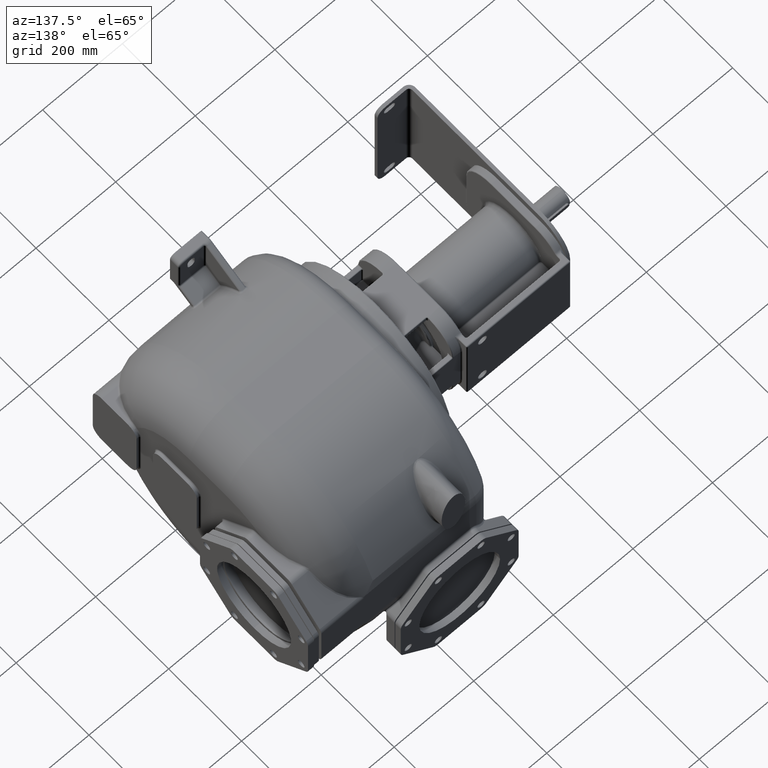
[diagram: clean part render]
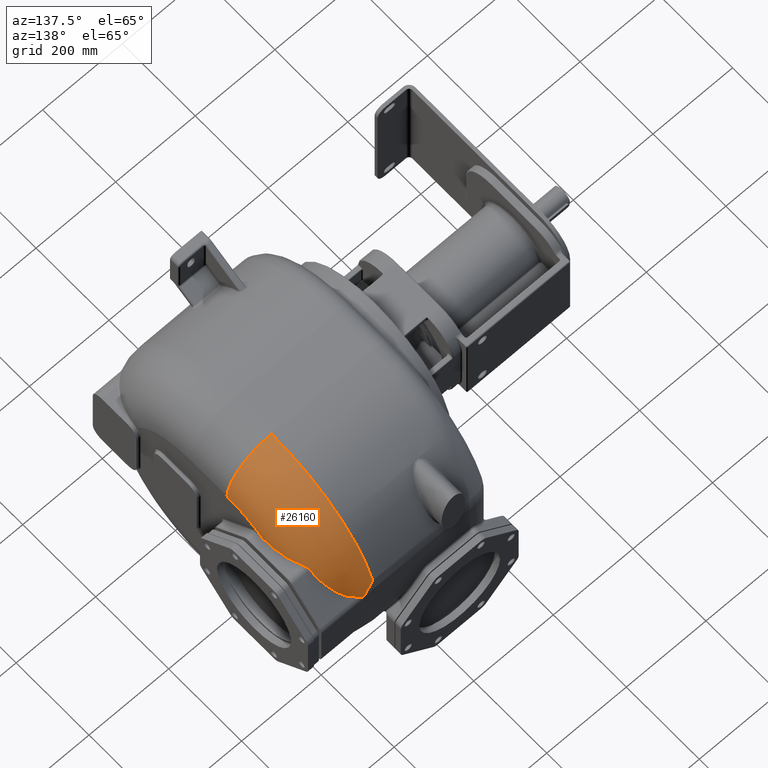
[diagram: same view with one face highlighted and labeled with its STEP entity id]
A machine part, auxiliary view. The second image highlights one B-rep face of the part: STEP entity #26160.
In plain terms, the highlighted toroidal blend (fillet) surface has major radius 179 mm and minor (blend) radius 112 mm.
Its self-contained STEP definition (entity closure, byte-faithful):
#5194=CARTESIAN_POINT('',(1.36E2,3.94E2,1.43E2));
#5195=DIRECTION('',(0.E0,-1.E0,0.E0));
#5196=DIRECTION('',(1.E0,0.E0,0.E0));
#5197=AXIS2_PLACEMENT_3D('',#5194,#5195,#5196);
#5236=CARTESIAN_POINT('',(2.48E2,3.94E2,-3.6E1));
#5237=DIRECTION('',(1.E0,0.E0,0.E0));
#5238=DIRECTION('',(0.E0,5.456873886561E-1,8.379888268120E-1));
#5239=AXIS2_PLACEMENT_3D('',#5236,#5237,#5238);
#5565=CARTESIAN_POINT('',(1.36E2,6.718391959799E2,5.052387634198E1));
#5566=CARTESIAN_POINT('',(1.366095752794E2,6.720213209790E2,4.993904355818E1));
#5567=CARTESIAN_POINT('',(1.378285896193E2,6.723723389908E2,4.876540576696E1));
#5568=CARTESIAN_POINT('',(1.396564296614E2,6.728589652222E2,4.699370218160E1));
#5569=CARTESIAN_POINT('',(1.414830226464E2,6.733054446863E2,4.521173684816E1));
#5570=CARTESIAN_POINT('',(1.433077513324E2,6.737115443172E2,4.342054669598E1));
#5571=CARTESIAN_POINT('',(1.451299345616E2,6.740770541203E2,4.162124411963E1));
#5572=CARTESIAN_POINT('',(1.469489379877E2,6.744018126540E2,3.981490063119E1));
#5573=CARTESIAN_POINT('',(1.487641441441E2,6.746856964704E2,3.800257834718E1));
#5574=CARTESIAN_POINT('',(1.505749254772E2,6.749286158565E2,3.618535511210E1));
#5575=CARTESIAN_POINT('',(1.523806496403E2,6.751305163500E2,3.436431893960E1));
#5576=CARTESIAN_POINT('',(1.541807008459E2,6.752913837220E2,3.254054522322E1));
#5577=CARTESIAN_POINT('',(1.559744695636E2,6.754112332183E2,3.071510387508E1));
#5578=CARTESIAN_POINT('',(1.577613476459E2,6.754901398516E2,2.888907617781E1));
#5579=CARTESIAN_POINT('',(1.595407476130E2,6.755281255369E2,2.706348337332E1));
#5580=CARTESIAN_POINT('',(1.607215962272E2,6.755264273906E2,2.584753595901E1));
#5581=CARTESIAN_POINT('',(1.613106156917E2,6.755187613096E2,2.523992685094E1));
#5583=CARTESIAN_POINT('',(1.613106156917E2,6.755187613096E2,2.523992685094E1));
#5584=CARTESIAN_POINT('',(1.615282849909E2,6.755159201790E2,2.501544371408E1));
#5585=CARTESIAN_POINT('',(1.619626435365E2,6.755096172252E2,2.456096269307E1));
#5586=CARTESIAN_POINT('',(1.626063624900E2,6.755011354481E2,2.385788048716E1));
#5587=CARTESIAN_POINT('',(1.632443720441E2,6.754921996188E2,2.313578667539E1));
#5588=CARTESIAN_POINT('',(1.636653350095E2,6.754863494762E2,2.264138464070E1));
#5589=CARTESIAN_POINT('',(1.638747586404E2,6.754833351880E2,2.239091367892E1));
#5591=CARTESIAN_POINT('',(1.638747586404E2,6.754833351880E2,2.239091367892E1));
#5592=CARTESIAN_POINT('',(1.638925941835E2,6.754642754049E2,2.246022672105E1));
#5593=CARTESIAN_POINT('',(1.639315096643E2,6.754249128449E2,2.260000634012E1));
#5594=CARTESIAN_POINT('',(1.639994272159E2,6.753625749068E2,2.281324229403E1));
#5595=CARTESIAN_POINT('',(1.640777131575E2,6.752964629059E2,2.303012570554E1));
#5596=CARTESIAN_POINT('',(1.641667924829E2,6.752264634192E2,2.325076715879E1));
#5597=CARTESIAN_POINT('',(1.642671757279E2,6.751523785855E2,2.347519603529E1));
#5598=CARTESIAN_POINT('',(1.643793180776E2,6.750740446437E2,2.370341339668E1));
#5599=CARTESIAN_POINT('',(1.645035817646E2,6.749913418168E2,2.393527525174E1));
#5600=CARTESIAN_POINT('',(1.646403859199E2,6.749040753187E2,2.417089888323E1));
#5601=CARTESIAN_POINT('',(1.647914695477E2,6.748112389723E2,2.441246683234E1));
#5602=CARTESIAN_POINT('',(1.649593306151E2,6.747116868460E2,2.466172614320E1));
#5603=CARTESIAN_POINT('',(1.651466684408E2,6.746042218936E2,2.492025074276E1));
#5604=CARTESIAN_POINT('',(1.653561365635E2,6.744877062041E2,2.518922260195E1));
#5605=CARTESIAN_POINT('',(1.655905890460E2,6.743608688908E2,2.546996977605E1));
#5606=CARTESIAN_POINT('',(1.658513325306E2,6.742231630611E2,2.576226642683E1));
#5607=CARTESIAN_POINT('',(1.661375673941E2,6.740748664321E2,2.606472570068E1));
#5608=CARTESIAN_POINT('',(1.664501808560E2,6.739157804325E2,2.637589878553E1));
#5609=CARTESIAN_POINT('',(1.667928546048E2,6.737442135699E2,2.669721234130E1));
#5610=CARTESIAN_POINT('',(1.671690134773E2,6.735585555757E2,2.702966358378E1));
#5611=CARTESIAN_POINT('',(1.675822717465E2,6.733568993543E2,2.737488528290E1));
#5612=CARTESIAN_POINT('',(1.680363736065E2,6.731372728982E2,2.773410079361E1));
#5613=CARTESIAN_POINT('',(1.685356634720E2,6.728976150057E2,2.810751683662E1));
#5614=CARTESIAN_POINT('',(1.690841285949E2,6.726358043547E2,2.849537598087E1));
#5615=CARTESIAN_POINT('',(1.696851863686E2,6.723496215409E2,2.889837135310E1));
#5616=CARTESIAN_POINT('',(1.703430648790E2,6.720365728682E2,2.931639601625E1));
#5617=CARTESIAN_POINT('',(1.710603406248E2,6.716948626283E2,2.974772528561E1));
#5618=CARTESIAN_POINT('',(1.718371565384E2,6.713233982689E2,3.019040203344E1));
#5619=CARTESIAN_POINT('',(1.726741498601E2,6.709208609538E2,3.064213670629E1));
#5620=CARTESIAN_POINT('',(1.732724086344E2,6.706309491828E2,3.094763589216E1));
#5621=CARTESIAN_POINT('',(1.735816067551E2,6.704803469810E2,3.110119043671E1));
#5623=CARTESIAN_POINT('',(1.735816067551E2,6.704803469810E2,3.110119043671E1));
#5624=CARTESIAN_POINT('',(1.739991651561E2,6.702769633329E2,3.130855998376E1));
#5625=CARTESIAN_POINT('',(1.748344401012E2,6.698615867163E2,3.173210263408E1));
#5626=CARTESIAN_POINT('',(1.760872615986E2,6.692122715134E2,3.239418557436E1));
#5627=CARTESIAN_POINT('',(1.773391540933E2,6.685364795372E2,3.308324373031E1));
#5628=CARTESIAN_POINT('',(1.785893264617E2,6.678339676624E2,3.379949544455E1));
#5629=CARTESIAN_POINT('',(1.798369437296E2,6.671045397943E2,3.454312213708E1));
#5630=CARTESIAN_POINT('',(1.810811708043E2,6.663480194452E2,3.531429433374E1));
#5631=CARTESIAN_POINT('',(1.823210893007E2,6.655643104821E2,3.611311342046E1));
#5632=CARTESIAN_POINT('',(1.835565157288E2,6.647528568632E2,3.694016218360E1));
#5633=CARTESIAN_POINT('',(1.847872659285E2,6.639130509495E2,3.779609874247E1));
#5634=CARTESIAN_POINT('',(1.860132327309E2,6.630442035748E2,3.868163048376E1));
#5635=CARTESIAN_POINT('',(1.872346095840E2,6.621453499696E2,3.959773147614E1));
#5636=CARTESIAN_POINT('',(1.884514743639E2,6.612155216582E2,4.054537722466E1));
#5637=CARTESIAN_POINT('',(1.896638416125E2,6.602537117617E2,4.152557764707E1));
#5638=CARTESIAN_POINT('',(1.908711628677E2,6.592592964332E2,4.253894928029E1));
#5639=CARTESIAN_POINT('',(1.920727965001E2,6.582317120894E2,4.358604459426E1));
#5640=CARTESIAN_POINT('',(1.932680774872E2,6.571703970368E2,4.466741431742E1));
#5641=CARTESIAN_POINT('',(1.944561745076E2,6.560749320205E2,4.578345948674E1));
#5642=CARTESIAN_POINT('',(1.956363259604E2,6.549448247609E2,4.693468548282E1));
#5643=CARTESIAN_POINT('',(1.968075958191E2,6.537797369375E2,4.812144591450E1));
#5644=CARTESIAN_POINT('',(1.979678400464E2,6.525806323247E2,4.934275433908E1));
#5645=CARTESIAN_POINT('',(1.991151416661E2,6.513484650783E2,5.059762544889E1));
#5646=CARTESIAN_POINT('',(2.002476748772E2,6.500842980406E2,5.188495383869E1));
#5647=CARTESIAN_POINT('',(2.013638959720E2,6.487890836895E2,5.320373800958E1));
#5648=CARTESIAN_POINT('',(2.024622863505E2,6.474639351730E2,5.455280591163E1));
#5649=CARTESIAN_POINT('',(2.035416937823E2,6.461097270654E2,5.593122024834E1));
#5650=CARTESIAN_POINT('',(2.046020793063E2,6.447259647149E2,5.733950727813E1));
#5651=CARTESIAN_POINT('',(2.056432556589E2,6.433122870771E2,5.877804124617E1));
#5652=CARTESIAN_POINT('',(2.066649749222E2,6.418683950148E2,6.024711485296E1));
#5653=CARTESIAN_POINT('',(2.076668650016E2,6.403941586978E2,6.174682976707E1));
#5654=CARTESIAN_POINT('',(2.086485790755E2,6.388894213165E2,6.327730006121E1));
#5655=CARTESIAN_POINT('',(2.096097431800E2,6.373540858849E2,6.483854951885E1));
#5656=CARTESIAN_POINT('',(2.105499462527E2,6.357881045892E2,6.643058211104E1));
#5657=CARTESIAN_POINT('',(2.114687846221E2,6.341913817731E2,6.805351584358E1));
#5658=CARTESIAN_POINT('',(2.123658397140E2,6.325638864671E2,6.970736540571E1));
#5659=CARTESIAN_POINT('',(2.132406786333E2,6.309056526390E2,7.139205992851E1));
#5660=CARTESIAN_POINT('',(2.140928948108E2,6.292167098895E2,7.310751248821E1));
#5661=CARTESIAN_POINT('',(2.149220938070E2,6.274971258266E2,7.485355964848E1));
#5662=CARTESIAN_POINT('',(2.157278643938E2,6.257469619597E2,7.663012734888E1));
#5663=CARTESIAN_POINT('',(2.165098122792E2,6.239662680762E2,7.843715851862E1));
#5664=CARTESIAN_POINT('',(2.172675490193E2,6.221551458921E2,8.027450771264E1));
#5665=CARTESIAN_POINT('',(2.180006924815E2,6.203137438683E2,8.214196149563E1));
#5666=CARTESIAN_POINT('',(2.187089108778E2,6.184421732582E2,8.403929671457E1));
#5667=CARTESIAN_POINT('',(2.193917934429E2,6.165407360413E2,8.596615157036E1));
#5668=CARTESIAN_POINT('',(2.200488886758E2,6.146098498069E2,8.792211337789E1));
#5669=CARTESIAN_POINT('',(2.206798101789E2,6.126498870526E2,8.990676566440E1));
#5670=CARTESIAN_POINT('',(2.212841582290E2,6.106613827519E2,9.191950030251E1));
#5671=CARTESIAN_POINT('',(2.218615654608E2,6.086449227205E2,9.395962720789E1));
#5672=CARTESIAN_POINT('',(2.224117281911E2,6.066010411496E2,9.602646246463E1));
#5673=CARTESIAN_POINT('',(2.229342307640E2,6.045305657451E2,9.811917280439E1));
#5674=CARTESIAN_POINT('',(2.234286887325E2,6.024343856119E2,1.002368502607E2));
#5675=CARTESIAN_POINT('',(2.238947685286E2,6.003134111605E2,1.023785287647E2));
#5676=CARTESIAN_POINT('',(2.243322161446E2,5.981683725410E2,1.045433935014E2));
#5677=CARTESIAN_POINT('',(2.246045364838E2,5.967232265814E2,1.060010851231E2));
#5678=CARTESIAN_POINT('',(2.247358971682E2,5.959966895569E2,1.067337059876E2));
#5680=CARTESIAN_POINT('',(2.247358971682E2,5.959966895569E2,1.067337059876E2));
#5681=CARTESIAN_POINT('',(2.247559903761E2,5.958855535043E2,1.068457684127E2));
#5682=CARTESIAN_POINT('',(2.247988818928E2,5.956600017034E2,1.070678742757E2));
#5683=CARTESIAN_POINT('',(2.248713472587E2,5.953117217853E2,1.073949228097E2));
#5684=CARTESIAN_POINT('',(2.249519290136E2,5.949536752341E2,1.077155145627E2));
#5685=CARTESIAN_POINT('',(2.250406266939E2,5.945859686253E2,1.080293558333E2));
#5686=CARTESIAN_POINT('',(2.251374395100E2,5.942087422917E2,1.083361013928E2));
#5687=CARTESIAN_POINT('',(2.252423791616E2,5.938221058754E2,1.086354078690E2));
#5688=CARTESIAN_POINT('',(2.253554284774E2,5.934263009878E2,1.089268032430E2));
#5689=CARTESIAN_POINT('',(2.254764553459E2,5.930219406119E2,1.092095560563E2));
#5690=CARTESIAN_POINT('',(2.256052727449E2,5.926097820513E2,1.094828630704E2));
#5691=CARTESIAN_POINT('',(2.257418388795E2,5.921898927347E2,1.097465368840E2));
#5692=CARTESIAN_POINT('',(2.258863937021E2,5.917614415526E2,1.100009549678E2));
#5693=CARTESIAN_POINT('',(2.260391284555E2,5.913238733174E2,1.102461941788E2));
#5694=CARTESIAN_POINT('',(2.262002188983E2,5.908767316191E2,1.104822022667E2));
#5695=CARTESIAN_POINT('',(2.263697671563E2,5.904198122200E2,1.107087239640E2));
#5696=CARTESIAN_POINT('',(2.265475622327E2,5.899537345851E2,1.109250968961E2));
#5697=CARTESIAN_POINT('',(2.267334021403E2,5.894790282911E2,1.111307579193E2));
#5698=CARTESIAN_POINT('',(2.269270220998E2,5.889963290348E2,1.113251454216E2));
#5699=CARTESIAN_POINT('',(2.271282212667E2,5.885060959328E2,1.115077862297E2));
#5700=CARTESIAN_POINT('',(2.273369281045E2,5.880084463549E2,1.116783514824E2));
#5701=CARTESIAN_POINT('',(2.275530254087E2,5.875035859151E2,1.118364879242E2));
#5702=CARTESIAN_POINT('',(2.277764030870E2,5.869916849107E2,1.119818594625E2));
#5703=CARTESIAN_POINT('',(2.280068293794E2,5.864731712662E2,1.121140684743E2));
#5704=CARTESIAN_POINT('',(2.282439882495E2,5.859486290162E2,1.122327135066E2));
#5705=CARTESIAN_POINT('',(2.284875455287E2,5.854186430929E2,1.123374406191E2));
#5706=CARTESIAN_POINT('',(2.287371719554E2,5.848837770505E2,1.124279199057E2));
#5707=CARTESIAN_POINT('',(2.289927039651E2,5.843442507126E2,1.125038681754E2));
#5708=CARTESIAN_POINT('',(2.292539518179E2,5.838003225675E2,1.125650065868E2));
#5709=CARTESIAN_POINT('',(2.295207108378E2,5.832522728972E2,1.126110598123E2));
#5710=CARTESIAN_POINT('',(2.297927837835E2,5.827003588648E2,1.126417558698E2));
#5711=CARTESIAN_POINT('',(2.299775170704E2,5.823301284209E2,1.126518016095E2));
#5712=CARTESIAN_POINT('',(2.300707203608E2,5.821444181946E2,1.126541756776E2));
#5714=CARTESIAN_POINT('',(2.300707203608E2,5.821444181946E2,1.126541756776E2));
#5715=CARTESIAN_POINT('',(2.304203458691E2,5.814478108397E2,1.126630390790E2));
#5716=CARTESIAN_POINT('',(2.311119065958E2,5.800403810505E2,1.126810403814E2));
#5717=CARTESIAN_POINT('',(2.321248498827E2,5.778874166180E2,1.127088427898E2));
#5718=CARTESIAN_POINT('',(2.331129412312E2,5.756917474607E2,1.127374599319E2));
#5719=CARTESIAN_POINT('',(2.340754563998E2,5.734529666854E2,1.127669053707E2));
#5720=CARTESIAN_POINT('',(2.350117005132E2,5.711705954941E2,1.127972023433E2));
#5721=CARTESIAN_POINT('',(2.359209730944E2,5.688441114363E2,1.128283816039E2));
#5722=CARTESIAN_POINT('',(2.368024305195E2,5.664734016394E2,1.128604816283E2));
#5723=CARTESIAN_POINT('',(2.376565664278E2,5.640545464254E2,1.128935702094E2));
#5724=CARTESIAN_POINT('',(2.384838007559E2,5.615830699657E2,1.129277167581E2));
#5725=CARTESIAN_POINT('',(2.392843190445E2,5.590541426099E2,1.129630043018E2));
#5726=CARTESIAN_POINT('',(2.400543138581E2,5.564756936678E2,1.129993399624E2));
#5727=CARTESIAN_POINT('',(2.407905297381E2,5.538560972537E2,1.130366260922E2));
#5728=CARTESIAN_POINT('',(2.414899862236E2,5.512049632268E2,1.130747342392E2));
#5729=CARTESIAN_POINT('',(2.421491465296E2,5.485370035782E2,1.131134498683E2));
#5730=CARTESIAN_POINT('',(2.427651343535E2,5.458686361297E2,1.131525299871E2));
#5731=CARTESIAN_POINT('',(2.433392574843E2,5.432009989064E2,1.131919520090E2));
#5732=CARTESIAN_POINT('',(2.438737019806E2,5.405303104624E2,1.132317689024E2));
#5733=CARTESIAN_POINT('',(2.443699632645E2,5.378550746736E2,1.132719874948E2));
#5734=CARTESIAN_POINT('',(2.448290070739E2,5.351763406132E2,1.133125791836E2));
#5735=CARTESIAN_POINT('',(2.452519235653E2,5.324945802097E2,1.133535246305E2));
#5736=CARTESIAN_POINT('',(2.456399491870E2,5.298091523184E2,1.133948230805E2));
#5737=CARTESIAN_POINT('',(2.459942692155E2,5.271193394058E2,1.134364673289E2));
#5738=CARTESIAN_POINT('',(2.463159403961E2,5.244250886142E2,1.134784400544E2));
#5739=CARTESIAN_POINT('',(2.466060025823E2,5.217263807689E2,1.135207237923E2));
#5740=CARTESIAN_POINT('',(2.468654906788E2,5.190231322362E2,1.135633009879E2));
#5741=CARTESIAN_POINT('',(2.470954359117E2,5.163151907666E2,1.136061491931E2));
#5742=CARTESIAN_POINT('',(2.472968693882E2,5.136022599439E2,1.136492482380E2));
#5743=CARTESIAN_POINT('',(2.474708113310E2,5.108840196622E2,1.136925776160E2));
#5744=CARTESIAN_POINT('',(2.476182776080E2,5.081600532823E2,1.137361147416E2));
#5745=CARTESIAN_POINT('',(2.477402724431E2,5.054299844530E2,1.137798332255E2));
#5746=CARTESIAN_POINT('',(2.478377904184E2,5.026936190580E2,1.138237022937E2));
#5747=CARTESIAN_POINT('',(2.479118334633E2,4.999507043471E2,1.138676902163E2));
#5748=CARTESIAN_POINT('',(2.479634099800E2,4.972009147565E2,1.139117620990E2));
#5749=CARTESIAN_POINT('',(2.479935352027E2,4.944439550334E2,1.139558800478E2));
#5750=CARTESIAN_POINT('',(2.479999999026E2,4.926008436326E2,1.139852981727E2));
#5751=CARTESIAN_POINT('',(2.48E2,4.916780425688E2,1.14E2));
#5987=CARTESIAN_POINT('',(1.36E2,3.94E2,-3.6E1));
#5988=DIRECTION('',(1.E0,0.E0,0.E0));
#5989=DIRECTION('',(0.E0,9.547738693467E-1,2.973329083917E-1));
#5990=AXIS2_PLACEMENT_3D('',#5987,#5988,#5989);
#6186=CARTESIAN_POINT('',(1.36E2,6.718391959799E2,5.052387634198E1));
#19959=CARTESIAN_POINT('',(1.36E2,3.939999999999E2,2.55E2));
#19961=VERTEX_POINT('',#19959);
#20024=CARTESIAN_POINT('',(2.48E2,3.94E2,1.43E2));
#20026=VERTEX_POINT('',#20024);
#20063=VERTEX_POINT('',#6186);
#20065=VERTEX_POINT('',#5581);
#20376=CARTESIAN_POINT('',(2.48E2,4.916780425694E2,1.139999999993E2));
#20377=VERTEX_POINT('',#20376);
#20419=VERTEX_POINT('',#5714);
#20421=VERTEX_POINT('',#5680);
#20424=VERTEX_POINT('',#5623);
#20427=VERTEX_POINT('',#5589);
#26138=CARTESIAN_POINT('',(1.36E2,3.94E2,-3.6E1));
#26139=DIRECTION('',(-1.E0,0.E0,0.E0));
#26140=DIRECTION('',(0.E0,9.569304419149E-1,2.903172907984E-1));
#26141=AXIS2_PLACEMENT_3D('',#26138,#26139,#26140);
#26142=TOROIDAL_SURFACE('',#26141,1.79E2,1.12E2);
#26143=ORIENTED_EDGE('',*,*,#25805,.T.);
#26144=ORIENTED_EDGE('',*,*,#25782,.T.);
#26146=ORIENTED_EDGE('',*,*,#26145,.F.);
#26148=ORIENTED_EDGE('',*,*,#26147,.T.);
#26150=ORIENTED_EDGE('',*,*,#26149,.T.);
#26152=ORIENTED_EDGE('',*,*,#26151,.T.);
#26154=ORIENTED_EDGE('',*,*,#26153,.T.);
#26156=ORIENTED_EDGE('',*,*,#26155,.T.);
#26157=ORIENTED_EDGE('',*,*,#26128,.T.);
#26158=EDGE_LOOP('',(#26143,#26144,#26146,#26148,#26150,#26152,#26154,#26156,
#26157));
#26159=FACE_OUTER_BOUND('',#26158,.F.);
#26160=ADVANCED_FACE('',(#26159),#26142,.T.);
#5198=CIRCLE('',#5197,1.12E2);
#5240=CIRCLE('',#5239,1.79E2);
#5582=B_SPLINE_CURVE_WITH_KNOTS('',3,(#5565,#5566,#5567,#5568,#5569,#5570,#5571,
#5572,#5573,#5574,#5575,#5576,#5577,#5578,#5579,#5580,#5581),.UNSPECIFIED.,.F.,
.F.,(4,1,1,1,1,1,1,1,1,1,1,1,1,1,4),(0.E0,7.142857142857E-2,1.428571428571E-1,
2.142857142857E-1,2.857142857143E-1,3.571428571429E-1,4.285714285714E-1,5.E-1,
5.714285714286E-1,6.428571428571E-1,7.142857142857E-1,7.857142857143E-1,
8.571428571429E-1,9.285714285714E-1,1.E0),.UNSPECIFIED.);
#5590=B_SPLINE_CURVE_WITH_KNOTS('',3,(#5583,#5584,#5585,#5586,#5587,#5588,
#5589),.UNSPECIFIED.,.F.,.F.,(4,1,1,1,4),(0.E0,2.5E-1,5.E-1,7.5E-1,1.E0),
.UNSPECIFIED.);
#5622=B_SPLINE_CURVE_WITH_KNOTS('',3,(#5591,#5592,#5593,#5594,#5595,#5596,#5597,
#5598,#5599,#5600,#5601,#5602,#5603,#5604,#5605,#5606,#5607,#5608,#5609,#5610,
#5611,#5612,#5613,#5614,#5615,#5616,#5617,#5618,#5619,#5620,#5621),
.UNSPECIFIED.,.F.,.F.,(4,1,1,1,1,1,1,1,1,1,1,1,1,1,1,1,1,1,1,1,1,1,1,1,1,1,1,1,
4),(0.E0,3.571428571429E-2,7.142857142857E-2,1.071428571429E-1,
1.428571428571E-1,1.785714285714E-1,2.142857142857E-1,2.5E-1,2.857142857143E-1,
3.214285714286E-1,3.571428571429E-1,3.928571428571E-1,4.285714285714E-1,
4.642857142857E-1,5.E-1,5.357142857143E-1,5.714285714286E-1,6.071428571429E-1,
6.428571428571E-1,6.785714285714E-1,7.142857142857E-1,7.5E-1,7.857142857143E-1,
8.214285714286E-1,8.571428571429E-1,8.928571428571E-1,9.285714285714E-1,
9.642857142857E-1,1.E0),.UNSPECIFIED.);
#5679=B_SPLINE_CURVE_WITH_KNOTS('',3,(#5623,#5624,#5625,#5626,#5627,#5628,#5629,
#5630,#5631,#5632,#5633,#5634,#5635,#5636,#5637,#5638,#5639,#5640,#5641,#5642,
#5643,#5644,#5645,#5646,#5647,#5648,#5649,#5650,#5651,#5652,#5653,#5654,#5655,
#5656,#5657,#5658,#5659,#5660,#5661,#5662,#5663,#5664,#5665,#5666,#5667,#5668,
#5669,#5670,#5671,#5672,#5673,#5674,#5675,#5676,#5677,#5678),.UNSPECIFIED.,.F.,
.F.,(4,1,1,1,1,1,1,1,1,1,1,1,1,1,1,1,1,1,1,1,1,1,1,1,1,1,1,1,1,1,1,1,1,1,1,1,1,
1,1,1,1,1,1,1,1,1,1,1,1,1,1,1,1,4),(0.E0,1.886792452830E-2,3.773584905660E-2,
5.660377358491E-2,7.547169811321E-2,9.433962264151E-2,1.132075471698E-1,
1.320754716981E-1,1.509433962264E-1,1.698113207547E-1,1.886792452830E-1,
2.075471698113E-1,2.264150943396E-1,2.452830188679E-1,2.641509433962E-1,
2.830188679245E-1,3.018867924528E-1,3.207547169811E-1,3.396226415094E-1,
3.584905660377E-1,3.773584905660E-1,3.962264150943E-1,4.150943396226E-1,
4.339622641509E-1,4.528301886792E-1,4.716981132075E-1,4.905660377358E-1,
5.094339622642E-1,5.283018867925E-1,5.471698113208E-1,5.660377358491E-1,
5.849056603774E-1,6.037735849057E-1,6.226415094340E-1,6.415094339623E-1,
6.603773584906E-1,6.792452830189E-1,6.981132075472E-1,7.169811320755E-1,
7.358490566038E-1,7.547169811321E-1,7.735849056604E-1,7.924528301887E-1,
8.113207547170E-1,8.301886792453E-1,8.490566037736E-1,8.679245283019E-1,
8.867924528302E-1,9.056603773585E-1,9.245283018868E-1,9.433962264151E-1,
9.622641509434E-1,9.811320754717E-1,1.E0),.UNSPECIFIED.);
#5713=B_SPLINE_CURVE_WITH_KNOTS('',3,(#5680,#5681,#5682,#5683,#5684,#5685,#5686,
#5687,#5688,#5689,#5690,#5691,#5692,#5693,#5694,#5695,#5696,#5697,#5698,#5699,
#5700,#5701,#5702,#5703,#5704,#5705,#5706,#5707,#5708,#5709,#5710,#5711,#5712),
.UNSPECIFIED.,.F.,.F.,(4,1,1,1,1,1,1,1,1,1,1,1,1,1,1,1,1,1,1,1,1,1,1,1,1,1,1,1,
1,1,4),(0.E0,3.333333333333E-2,6.666666666667E-2,1.E-1,1.333333333333E-1,
1.666666666667E-1,2.E-1,2.333333333333E-1,2.666666666667E-1,3.E-1,
3.333333333333E-1,3.666666666667E-1,4.E-1,4.333333333333E-1,4.666666666667E-1,
5.E-1,5.333333333333E-1,5.666666666667E-1,6.E-1,6.333333333333E-1,
6.666666666667E-1,7.E-1,7.333333333333E-1,7.666666666667E-1,8.E-1,
8.333333333333E-1,8.666666666667E-1,9.E-1,9.333333333333E-1,9.666666666667E-1,
1.E0),.UNSPECIFIED.);
#5752=B_SPLINE_CURVE_WITH_KNOTS('',3,(#5714,#5715,#5716,#5717,#5718,#5719,#5720,
#5721,#5722,#5723,#5724,#5725,#5726,#5727,#5728,#5729,#5730,#5731,#5732,#5733,
#5734,#5735,#5736,#5737,#5738,#5739,#5740,#5741,#5742,#5743,#5744,#5745,#5746,
#5747,#5748,#5749,#5750,#5751),.UNSPECIFIED.,.F.,.F.,(4,1,1,1,1,1,1,1,1,1,1,1,1,
1,1,1,1,1,1,1,1,1,1,1,1,1,1,1,1,1,1,1,1,1,1,4),(0.E0,2.857142857143E-2,
5.714285714286E-2,8.571428571429E-2,1.142857142857E-1,1.428571428571E-1,
1.714285714286E-1,2.E-1,2.285714285714E-1,2.571428571429E-1,2.857142857143E-1,
3.142857142857E-1,3.428571428571E-1,3.714285714286E-1,4.E-1,4.285714285714E-1,
4.571428571429E-1,4.857142857143E-1,5.142857142857E-1,5.428571428571E-1,
5.714285714286E-1,6.E-1,6.285714285714E-1,6.571428571429E-1,6.857142857143E-1,
7.142857142857E-1,7.428571428571E-1,7.714285714286E-1,8.E-1,8.285714285714E-1,
8.571428571429E-1,8.857142857143E-1,9.142857142857E-1,9.428571428571E-1,
9.714285714286E-1,1.E0),.UNSPECIFIED.);
#5991=CIRCLE('',#5990,2.91E2);
#25782=EDGE_CURVE('',#20026,#19961,#5198,.T.);
#25805=EDGE_CURVE('',#20377,#20026,#5240,.T.);
#26128=EDGE_CURVE('',#20419,#20377,#5752,.T.);
#26145=EDGE_CURVE('',#20063,#19961,#5991,.T.);
#26147=EDGE_CURVE('',#20063,#20065,#5582,.T.);
#26149=EDGE_CURVE('',#20065,#20427,#5590,.T.);
#26151=EDGE_CURVE('',#20427,#20424,#5622,.T.);
#26153=EDGE_CURVE('',#20424,#20421,#5679,.T.);
#26155=EDGE_CURVE('',#20421,#20419,#5713,.T.);